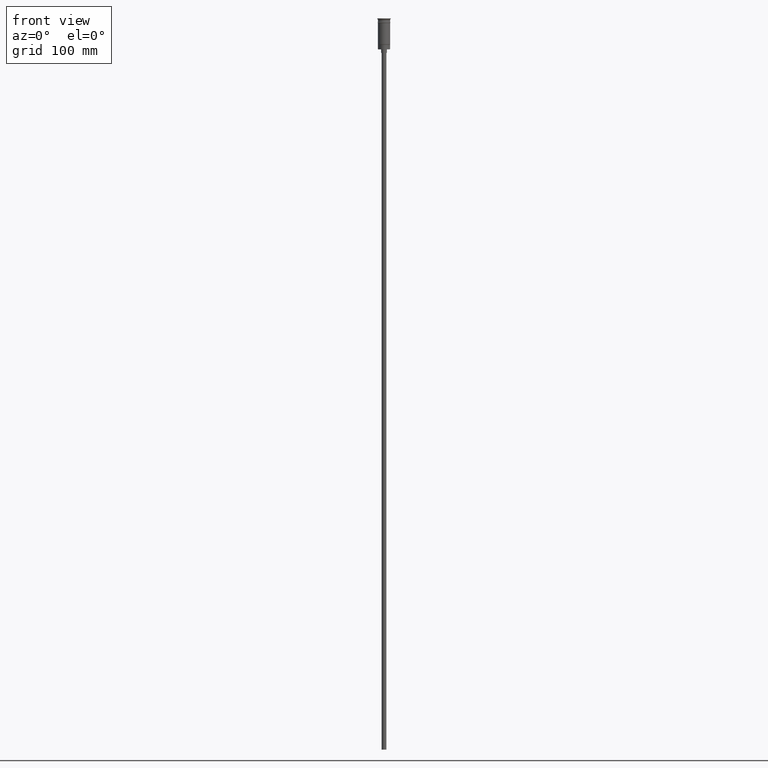
[diagram: clean part render]
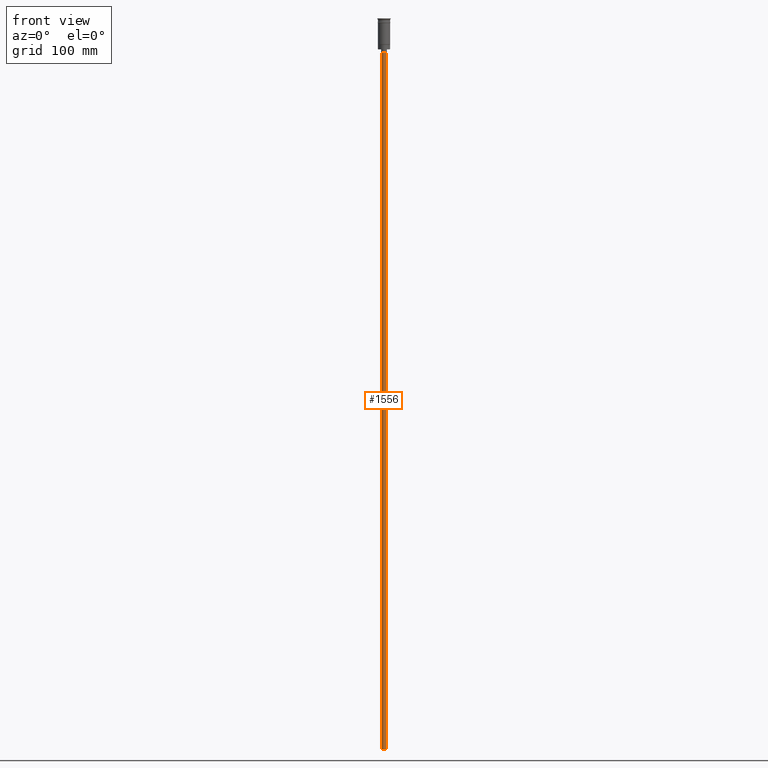
[diagram: same view with one face highlighted and labeled with its STEP entity id]
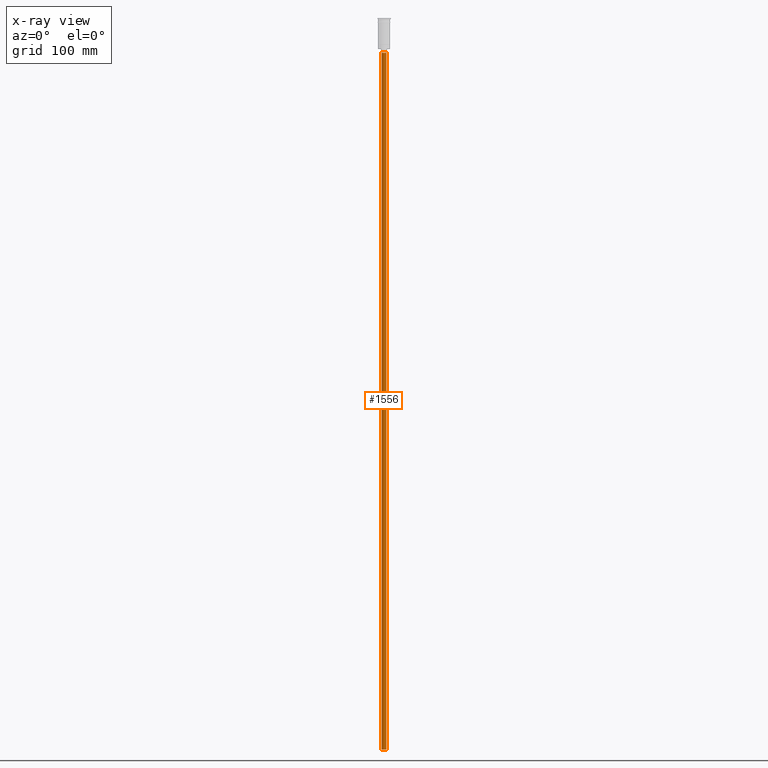
[diagram: x-ray of the same camera — body ghosted, the highlighted face saturated]
A machine part, front view. The second image highlights one B-rep face of the part: STEP entity #1556.
The next image is the same camera in x-ray: the body ghosted, the highlighted face saturated — about 0% of this face is hidden behind the body in this view.
In plain terms, the highlighted cylindrical surface (edge-blend (fillet) strip) has radius 2 mm, axis along (-0, -0, 1).
Its self-contained STEP definition (entity closure, byte-faithful):
#32 = CARTESIAN_POINT ( 'NONE',  ( 0.000000000000000000, 0.000000000000000000, -29.50000000000000000 ) ) ;
#105 = CARTESIAN_POINT ( 'NONE',  ( 0.000000000000000000, 0.000000000000000000, -626.5000000000000000 ) ) ;
#134 = CYLINDRICAL_SURFACE ( 'NONE', #1246, 2.000000000000000000 ) ;
#139 = CARTESIAN_POINT ( 'NONE',  ( 2.000000000000000000, 0.000000000000000000, -626.5000000000000000 ) ) ;
#173 = DIRECTION ( 'NONE',  ( -1.000000000000000000, 0.000000000000000000, 0.000000000000000000 ) ) ;
#196 = DIRECTION ( 'NONE',  ( 0.000000000000000000, 0.000000000000000000, -1.000000000000000000 ) ) ;
#198 = EDGE_CURVE ( 'NONE', #1377, #408, #374, .T. ) ;
#206 = VERTEX_POINT ( 'NONE', #887 ) ;
#221 = ORIENTED_EDGE ( 'NONE', *, *, #395, .T. ) ;
#297 = DIRECTION ( 'NONE',  ( -0.000000000000000000, -0.000000000000000000, 1.000000000000000000 ) ) ;
#352 = CARTESIAN_POINT ( 'NONE',  ( -2.000000000000000000, 2.449293598294706414E-16, -626.5000000000000000 ) ) ;
#374 = LINE ( 'NONE', #352, #638 ) ;
#391 = DIRECTION ( 'NONE',  ( -0.000000000000000000, -0.000000000000000000, 1.000000000000000000 ) ) ;
#395 = EDGE_CURVE ( 'NONE', #1501, #206, #1034, .T. ) ;
#398 = CARTESIAN_POINT ( 'NONE',  ( 2.000000000000000000, 0.000000000000000000, -626.5000000000000000 ) ) ;
#408 = VERTEX_POINT ( 'NONE', #1507 ) ;
#468 = ORIENTED_EDGE ( 'NONE', *, *, #809, .T. ) ;
#573 = CARTESIAN_POINT ( 'NONE',  ( -2.000000000000000000, 2.449293598294706414E-16, -626.5000000000000000 ) ) ;
#638 = VECTOR ( 'NONE', #391, 1000.000000000000000 ) ;
#685 = DIRECTION ( 'NONE',  ( -1.000000000000000000, 0.000000000000000000, 0.000000000000000000 ) ) ;
#710 = ORIENTED_EDGE ( 'NONE', *, *, #198, .F. ) ;
#744 = FACE_OUTER_BOUND ( 'NONE', #1436, .T. ) ;
#776 = CIRCLE ( 'NONE', #1554, 2.000000000000000000 ) ;
#809 = EDGE_CURVE ( 'NONE', #206, #408, #1521, .T. ) ;
#850 = VECTOR ( 'NONE', #297, 1000.000000000000000 ) ;
#861 = CARTESIAN_POINT ( 'NONE',  ( 0.000000000000000000, 0.000000000000000000, -626.5000000000000000 ) ) ;
#887 = CARTESIAN_POINT ( 'NONE',  ( 2.000000000000000000, 0.000000000000000000, -29.50000000000000000 ) ) ;
#952 = DIRECTION ( 'NONE',  ( -0.000000000000000000, -0.000000000000000000, 1.000000000000000000 ) ) ;
#954 = AXIS2_PLACEMENT_3D ( 'NONE', #32, #1154, #173 ) ;
#1034 = LINE ( 'NONE', #398, #850 ) ;
#1154 = DIRECTION ( 'NONE',  ( 0.000000000000000000, 0.000000000000000000, -1.000000000000000000 ) ) ;
#1246 = AXIS2_PLACEMENT_3D ( 'NONE', #861, #952, #1471 ) ;
#1308 = ORIENTED_EDGE ( 'NONE', *, *, #1422, .F. ) ;
#1377 = VERTEX_POINT ( 'NONE', #573 ) ;
#1422 = EDGE_CURVE ( 'NONE', #1501, #1377, #776, .T. ) ;
#1436 = EDGE_LOOP ( 'NONE', ( #710, #1308, #221, #468 ) ) ;
#1471 = DIRECTION ( 'NONE',  ( 1.000000000000000000, 0.000000000000000000, 0.000000000000000000 ) ) ;
#1501 = VERTEX_POINT ( 'NONE', #139 ) ;
#1507 = CARTESIAN_POINT ( 'NONE',  ( -2.000000000000000000, 2.449293598294706414E-16, -29.50000000000000000 ) ) ;
#1521 = CIRCLE ( 'NONE', #954, 2.000000000000000000 ) ;
#1554 = AXIS2_PLACEMENT_3D ( 'NONE', #105, #196, #685 ) ;
#1556 = ADVANCED_FACE ( 'NONE', ( #744 ), #134, .T. ) ;